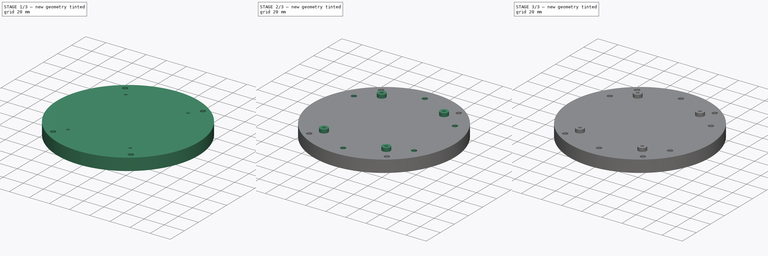
[diagram: build sequence overview — one tinted view per stage of 3, left to right]
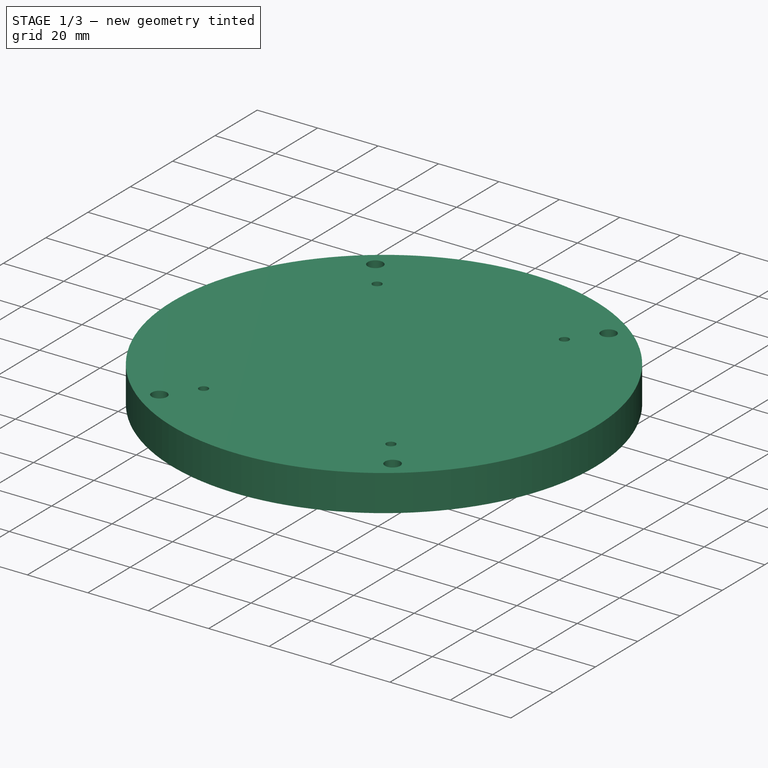
[diagram: stage 1 of 3 — iso view after this stage's code; geometry added in this stage tinted green]
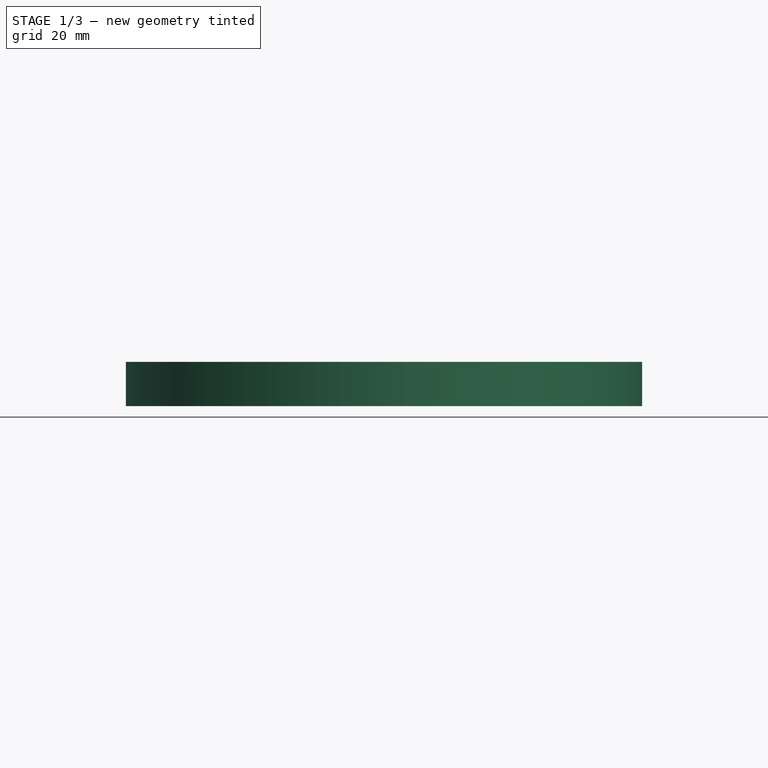
[diagram: stage 1 of 3 — front view after this stage's code; geometry added in this stage tinted green]
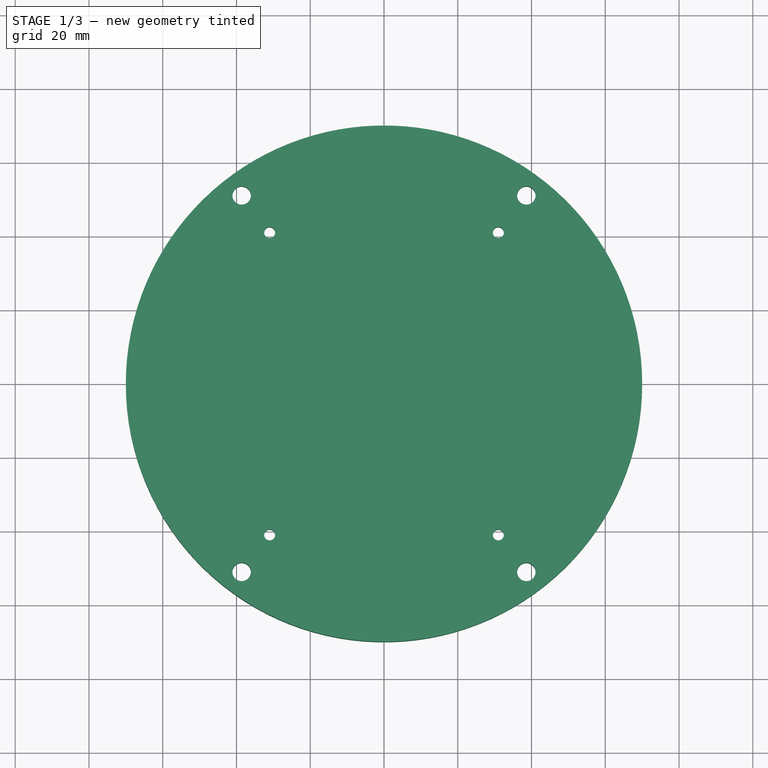
[diagram: stage 1 of 3 — top view after this stage's code; geometry added in this stage tinted green]
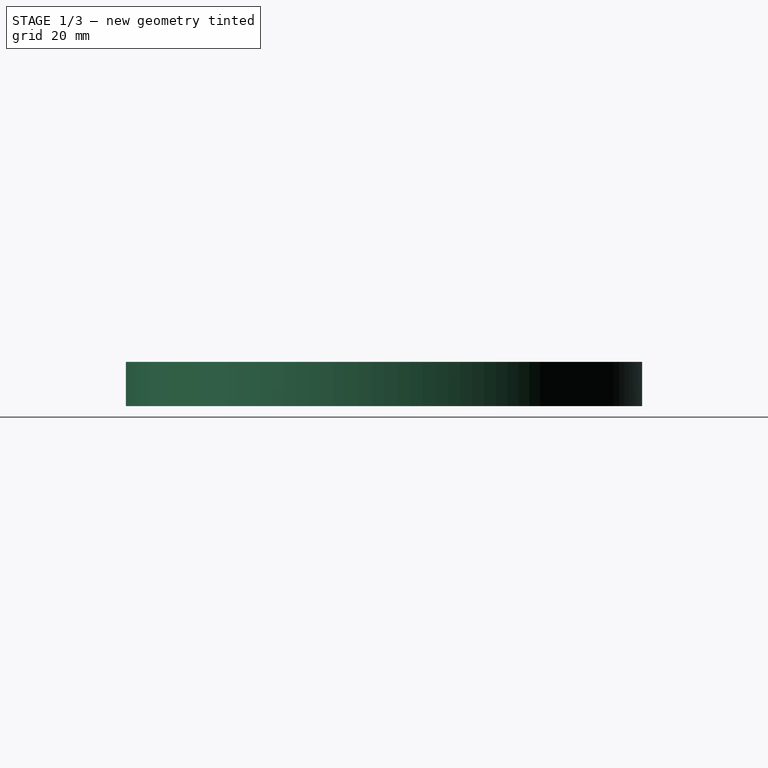
[diagram: stage 1 of 3 — right view after this stage's code; geometry added in this stage tinted green]
FCSTD DOCUMENT  (FreeCAD 0.20R29410 (Git))
Label: #1_BaseFloor
License: All rights reserved
LicenseURL: http://en.wikipedia.org/wiki/All_rights_reserved
objects: Sketcher::SketchObject×5, PartDesign::Pocket×3, PartDesign::Pad×2, PartDesign::PolarPattern×1, PartDesign::Body×1
note: 17 computed .brp shape members not serialized (recipe doc carries the construction recipe); baked Part::Feature solids carry a one-line shape summary decoded from their .brp

FEATURE [Sketcher::SketchObject] Sketch
  FullyConstrained = true
  MapMode = 5
  Support = -> [XY_Plane]
  sketch-geometry (6):
    g0: Circle CenterX=0 CenterY=0 CenterZ=0 NormalX=0 NormalY=0 NormalZ=1 AngleXU=0 Radius=70
    g1: GeomPoint X=0 Y=0 Z=0
    g2: Circle CenterX=38.6 CenterY=51.05 CenterZ=0 NormalX=0 NormalY=0 NormalZ=1 AngleXU=0 Radius=2.5
    g3: Circle CenterX=-38.6 CenterY=51.05 CenterZ=0 NormalX=0 NormalY=0 NormalZ=1 AngleXU=0 Radius=2.5
    g4: Circle CenterX=38.6 CenterY=-51.05 CenterZ=0 NormalX=0 NormalY=0 NormalZ=1 AngleXU=0 Radius=2.5
    g5: Circle CenterX=-38.6 CenterY=-51.05 CenterZ=0 NormalX=0 NormalY=0 NormalZ=1 AngleXU=0 Radius=2.5
  constraints (12):
    c: Coincident(g0,g-1)
    c: Diameter(g0) = 140
    c: Coincident(g1,g0)
    c: Diameter(g5) = 5
    c: Diameter(g3) = 5
    c: Diameter(g2) = 5
    c: Diameter(g4) = 5
    c: Distance(g3,g-2) = 38.6
    c: Distance(g3,g-1) = 51.05
    c: Symmetric(g3,g5,g-1)
    c: Symmetric(g4,g5,g-2)
    c: Symmetric(g2,g3,g-2)
FEATURE [PartDesign::Pad] Pad
  Direction = (0,0,1)
  Length = 12
  Length2 = 10
  Profile = -> Sketch
  ReferenceAxis = -> Sketch [N_Axis]
  Type = 0
FEATURE [Sketcher::SketchObject] Sketch001
  FullyConstrained = true
  MapMode = 5
  Placement = pos=(0,0,12) rot=(0,0,1;0rad)
  Support = -> [Pad]
  sketch-geometry (4):
    g0: Circle CenterX=-31 CenterY=41 CenterZ=0 NormalX=0 NormalY=0 NormalZ=1 AngleXU=0 Radius=1.5
    g1: Circle CenterX=31 CenterY=41 CenterZ=0 NormalX=0 NormalY=0 NormalZ=1 AngleXU=0 Radius=1.5
    g2: Circle CenterX=31 CenterY=-41 CenterZ=0 NormalX=0 NormalY=0 NormalZ=1 AngleXU=0 Radius=1.5
    g3: Circle CenterX=-31 CenterY=-41 CenterZ=0 NormalX=0 NormalY=0 NormalZ=1 AngleXU=0 Radius=1.5
  constraints (9):
    c: Distance(g1,g-2) = 31
    c: Distance(g1,g-1) = 41
    c: Symmetric(g1,g2,g-1)
    c: Symmetric(g3,g2,g-2)
    c: Symmetric(g3,g0,g-1)
    c: Diameter(g1) = 3
    c: Diameter(g2) = 3
    c: Diameter(g3) = 3
    c: Diameter(g0) = 3
FEATURE [PartDesign::Pocket] Pocket
  BaseFeature = -> Pad
  Direction = (0,0,-1)
  Length = 15
  Length2 = 5
  Profile = -> Sketch001
  ReferenceAxis = -> Sketch001 [N_Axis]
  Type = 0
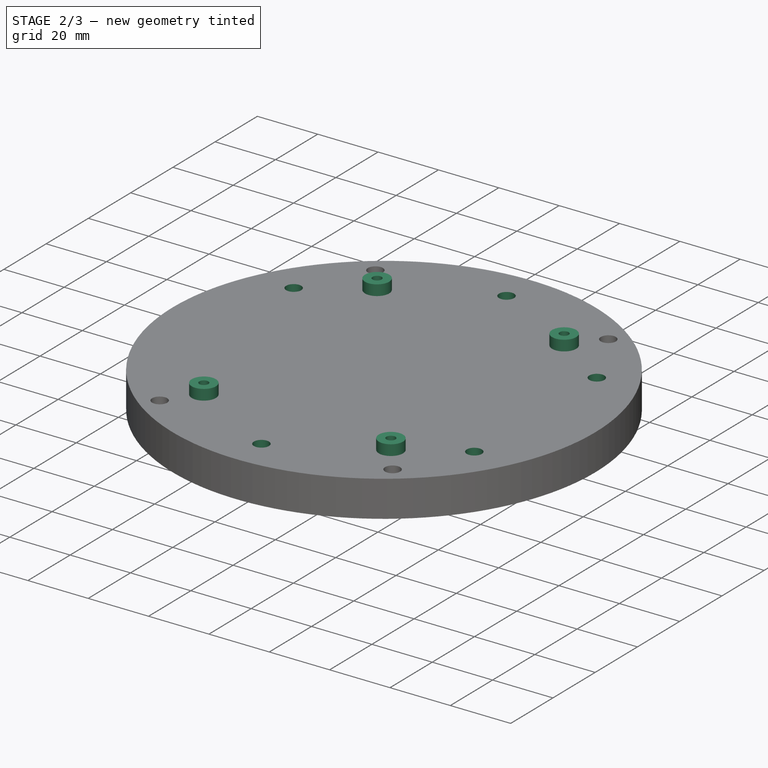
[diagram: stage 2 of 3 — iso view after this stage's code; geometry added in this stage tinted green]
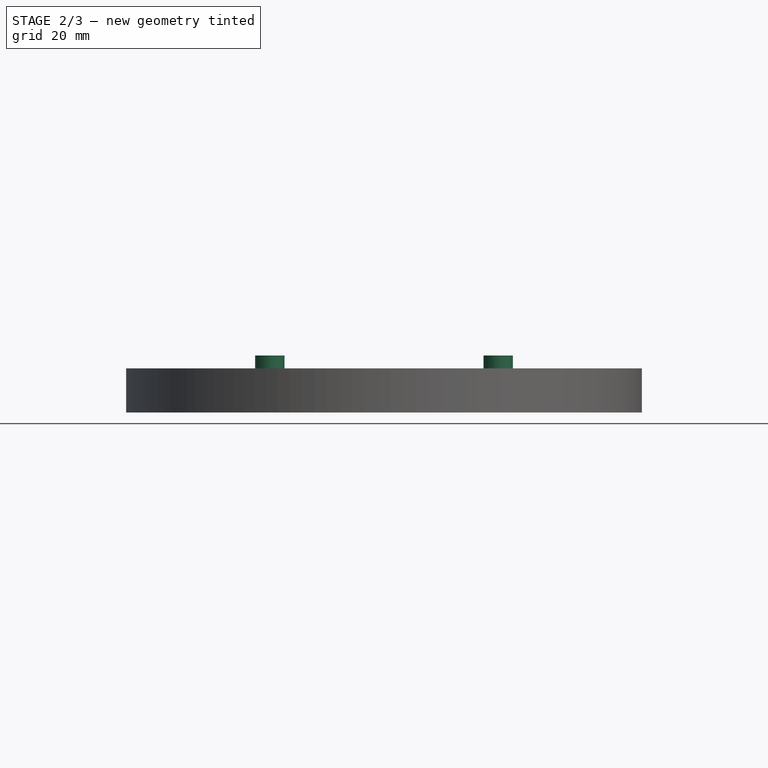
[diagram: stage 2 of 3 — front view after this stage's code; geometry added in this stage tinted green]
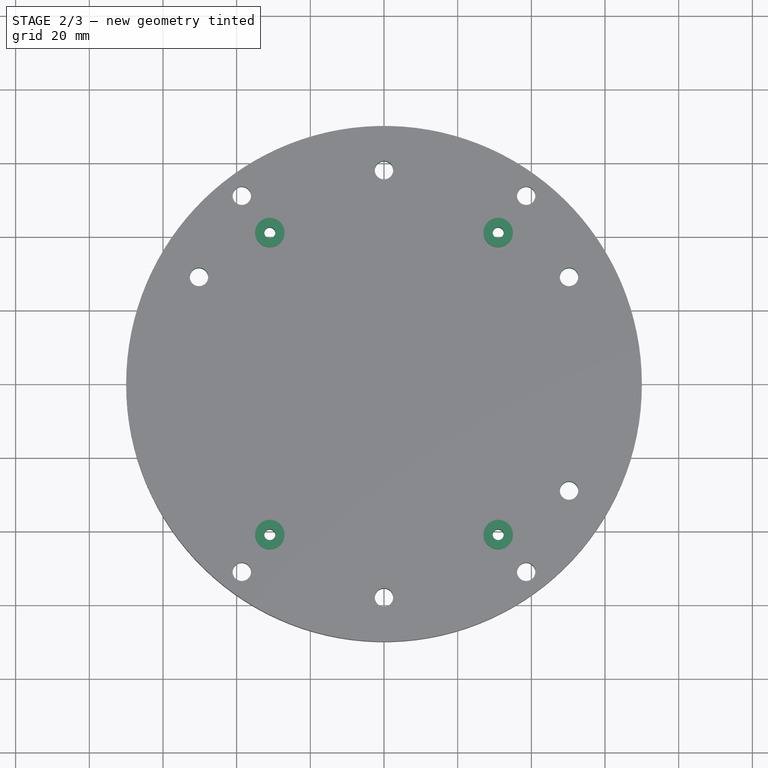
[diagram: stage 2 of 3 — top view after this stage's code; geometry added in this stage tinted green]
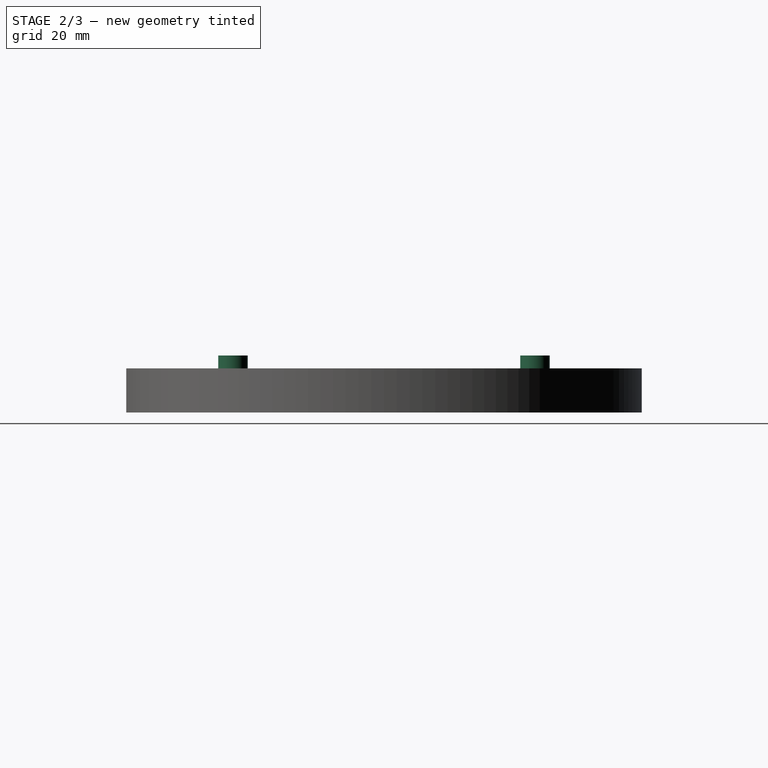
[diagram: stage 2 of 3 — right view after this stage's code; geometry added in this stage tinted green]
FEATURE [Sketcher::SketchObject] Sketch002
  ExternalGeometry = -> [Pocket]
  FullyConstrained = true
  MapMode = 5
  Placement = pos=(0,0,12) rot=(0,0,1;0rad)
  Support = -> [Pocket]
  sketch-geometry (8):
    g0: Circle CenterX=-31 CenterY=-41 CenterZ=0 NormalX=0 NormalY=0 NormalZ=1 AngleXU=0 Radius=4
    g1: Circle CenterX=31 CenterY=-41 CenterZ=0 NormalX=0 NormalY=0 NormalZ=1 AngleXU=0 Radius=4
    g2: Circle CenterX=31 CenterY=41 CenterZ=0 NormalX=0 NormalY=0 NormalZ=1 AngleXU=0 Radius=4
    g3: Circle CenterX=-31 CenterY=41 CenterZ=0 NormalX=0 NormalY=0 NormalZ=1 AngleXU=0 Radius=4
    g4: Circle CenterX=-31 CenterY=41 CenterZ=0 NormalX=0 NormalY=0 NormalZ=1 AngleXU=0 Radius=1.5
    g5: Circle CenterX=31 CenterY=41 CenterZ=0 NormalX=0 NormalY=0 NormalZ=1 AngleXU=0 Radius=1.5
    g6: Circle CenterX=31 CenterY=-41 CenterZ=0 NormalX=0 NormalY=0 NormalZ=1 AngleXU=0 Radius=1.5
    g7: Circle CenterX=-31 CenterY=-41 CenterZ=0 NormalX=0 NormalY=0 NormalZ=1 AngleXU=0 Radius=1.5
  constraints (16):
    c: Coincident(g0,g-5)
    c: Coincident(g1,g-6)
    c: Coincident(g2,g-4)
    c: Coincident(g3,g-3)
    c: Diameter(g2) = 8
    c: Diameter(g3) = 8
    c: Diameter(g0) = 8
    c: Diameter(g1) = 8
    c: Coincident(g4,g3)
    c: Diameter(g4) = 3
    c: Coincident(g5,g2)
    c: Diameter(g5) = 3
    c: Coincident(g6,g1)
    c: Diameter(g6) = 3
    c: Coincident(g7,g0)
    c: Diameter(g7) = 3
FEATURE [PartDesign::Pad] Pad001
  BaseFeature = -> Pocket
  Direction = (0,0,1)
  Length = 3.5
  Length2 = 10
  Profile = -> Sketch002
  ReferenceAxis = -> Sketch002 [N_Axis]
  Type = 0
FEATURE [Sketcher::SketchObject] Sketch003
  FullyConstrained = true
  MapMode = 5
  Placement = pos=(0,0,12) rot=(0,0,1;0rad)
  Support = -> [Pad001]
  sketch-geometry (5):
    g0: Circle CenterX=0 CenterY=58 CenterZ=0 NormalX=0 NormalY=0 NormalZ=1 AngleXU=0 Radius=2.5
    g1: Circle CenterX=50.2295 CenterY=29 CenterZ=0 NormalX=0 NormalY=0 NormalZ=1 AngleXU=0 Radius=2.5
    g2: Circle CenterX=50.2295 CenterY=-29 CenterZ=0 NormalX=0 NormalY=0 NormalZ=1 AngleXU=0 Radius=2.5
    g3: Circle CenterX=-7.8e-15 CenterY=-58 CenterZ=0 NormalX=0 NormalY=0 NormalZ=1 AngleXU=0 Radius=2.5
    g4: Circle CenterX=-50.2295 CenterY=29 CenterZ=0 NormalX=0 NormalY=0 NormalZ=1 AngleXU=0 Radius=2.5
  constraints (15):
    c: Distance(g-1,g0) = 58
    c: Diameter(g0) = 5
    c: PointOnObject(g0,g-2)
    c: Diameter(g1) = 5
    c: Diameter(g2) = 5
    c: Diameter(g3) = 5
    c: Distance(g-1,g1) = 58
    c: Distance(g2,g-1) = 58
    c: Distance(g-1,g3) = 58
    c: Distance(g1,g0) = 58
    c: Distance(g1,g2) = 58
    c: Distance(g3,g2) = 58
    c: Distance(g4,g-1) = 58
    c: Distance(g4,g0) = 58
    c: Diameter(g4) = 5
FEATURE [PartDesign::Pocket] Pocket001
  BaseFeature = -> Pad001
  Direction = (0,0,-1)
  Length = 15
  Length2 = 5
  Profile = -> Sketch003
  ReferenceAxis = -> Sketch003 [N_Axis]
  Type = 0
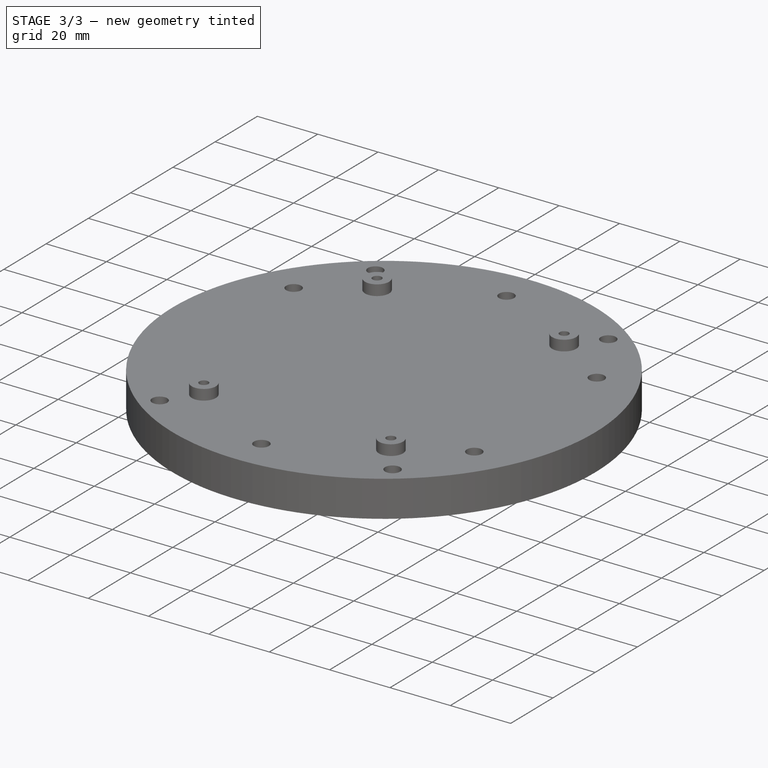
[diagram: stage 3 of 3 — iso view after this stage's code; geometry added in this stage tinted green]
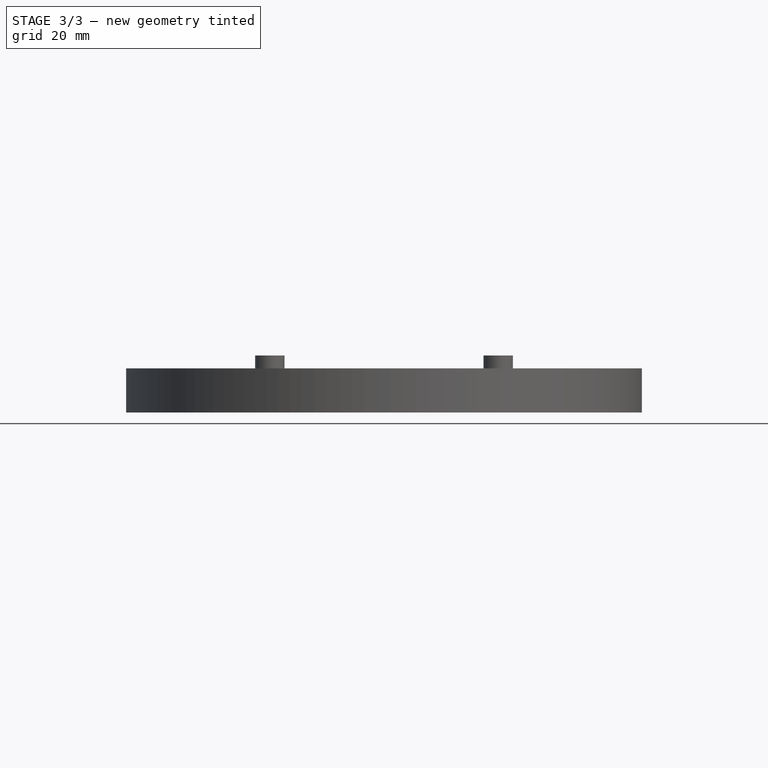
[diagram: stage 3 of 3 — front view after this stage's code; geometry added in this stage tinted green]
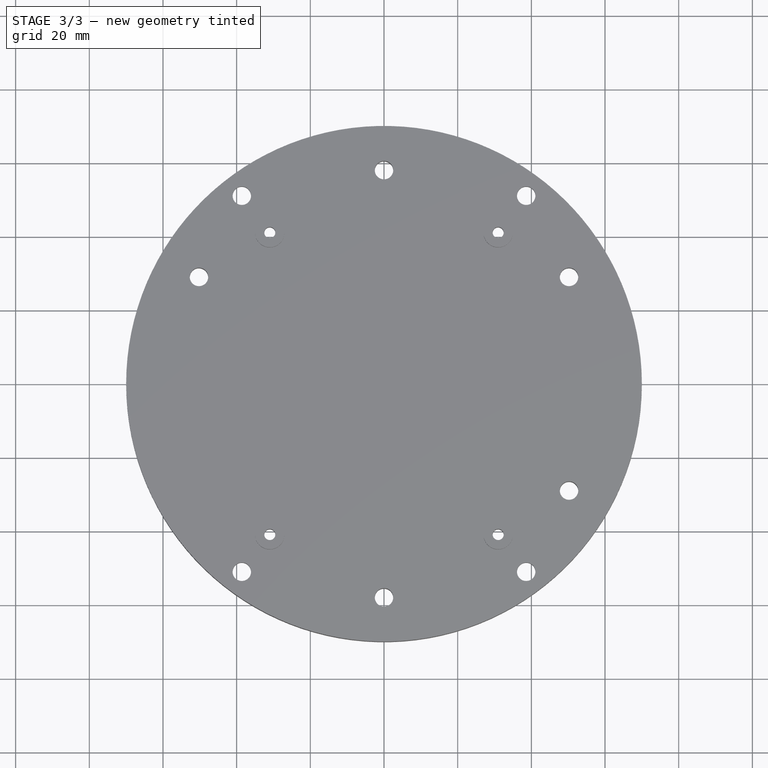
[diagram: stage 3 of 3 — top view after this stage's code; geometry added in this stage tinted green]
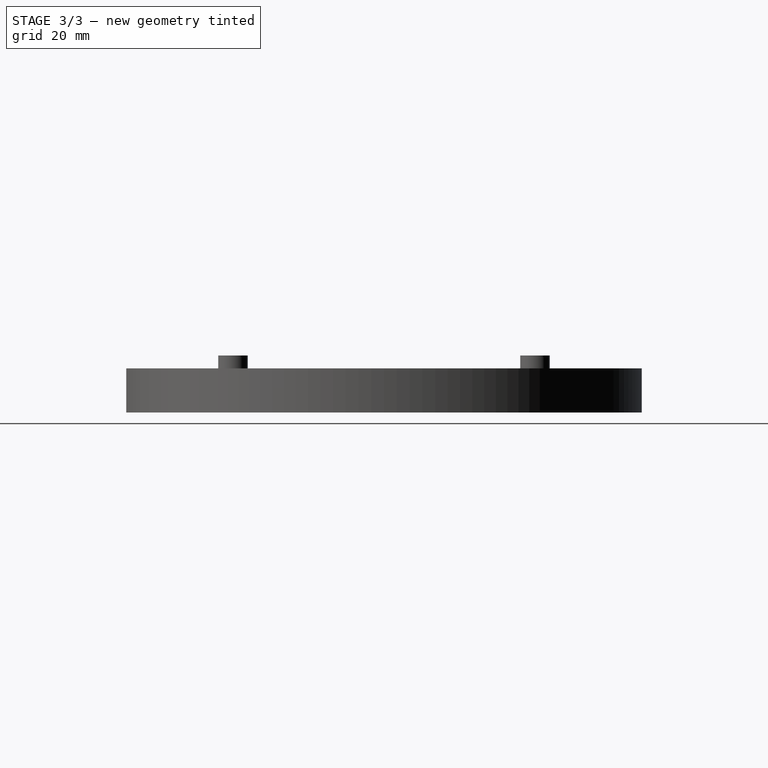
[diagram: stage 3 of 3 — right view after this stage's code; geometry added in this stage tinted green]
FEATURE [Sketcher::SketchObject] Sketch004
  ExternalGeometry = -> [Pocket001]
  FullyConstrained = true
  MapMode = 5
  Placement = pos=(0,0,0) rot=(1,0,0;3.14159rad)
  Support = -> [Pocket001]
  sketch-geometry (32):
    g0: LineSegment StartX=-35.0081 StartY=53.7663 StartZ=0 EndX=-39.1564 EndY=55.5188 EndZ=0
    g1: LineSegment StartX=-39.1564 StartY=55.5188 StartZ=0 EndX=-42.7483 EndY=52.8026 EndZ=0
    g2: LineSegment StartX=-42.7483 StartY=52.8026 StartZ=0 EndX=-42.1919 EndY=48.3337 EndZ=0
    g3: LineSegment StartX=-42.1919 StartY=48.3337 StartZ=0 EndX=-38.0436 EndY=46.5812 EndZ=0
    g4: LineSegment StartX=-38.0436 StartY=46.5812 StartZ=0 EndX=-34.4517 EndY=49.2974 EndZ=0
    g5: LineSegment StartX=-34.4517 StartY=49.2974 StartZ=0 EndX=-35.0081 EndY=53.7663 EndZ=0
    g6: Circle CenterX=-38.6 CenterY=51.05 CenterZ=0 NormalX=0 NormalY=0 NormalZ=1 AngleXU=0 Radius=4.50333
    g7: LineSegment StartX=-28.5133 StartY=42.8805 StartZ=0 EndX=-31.3852 EndY=44.0938 EndZ=0
    g8: LineSegment StartX=-31.3852 StartY=44.0938 StartZ=0 EndX=-33.8719 EndY=42.2133 EndZ=0
    g9: LineSegment StartX=-33.8719 StartY=42.2133 StartZ=0 EndX=-33.4867 EndY=39.1195 EndZ=0
    g10: LineSegment StartX=-33.4867 StartY=39.1195 StartZ=0 EndX=-30.6148 EndY=37.9062 EndZ=0
    g11: LineSegment StartX=-30.6148 StartY=37.9062 StartZ=0 EndX=-28.1281 EndY=39.7867 EndZ=0
    g12: LineSegment StartX=-28.1281 StartY=39.7867 StartZ=0 EndX=-28.5133 EndY=42.8805 EndZ=0
    g13: Circle CenterX=-31 CenterY=41 CenterZ=0 NormalX=0 NormalY=0 NormalZ=1 AngleXU=0 Radius=3.11769
    g14: LineSegment StartX=-34.4517 StartY=49.2974 StartZ=0 EndX=-33.8719 EndY=42.2133 EndZ=0
    g15: LineSegment StartX=-31.3852 StartY=44.0938 StartZ=0 EndX=-38.0436 EndY=46.5812 EndZ=0
    g16: LineSegment StartX=-35.0081 StartY=-53.7663 StartZ=0 EndX=-34.4517 EndY=-49.2974 EndZ=0
    g17: LineSegment StartX=-34.4517 StartY=-49.2974 StartZ=0 EndX=-38.0436 EndY=-46.5812 EndZ=0
    g18: LineSegment StartX=-38.0436 StartY=-46.5812 StartZ=0 EndX=-42.1919 EndY=-48.3337 EndZ=0
    g19: LineSegment StartX=-42.1919 StartY=-48.3337 StartZ=0 EndX=-42.7483 EndY=-52.8026 EndZ=0
    g20: LineSegment StartX=-42.7483 StartY=-52.8026 StartZ=0 EndX=-39.1564 EndY=-55.5188 EndZ=0
    g21: LineSegment StartX=-39.1564 StartY=-55.5188 StartZ=0 EndX=-35.0081 EndY=-53.7663 EndZ=0
    g22: Circle CenterX=-38.6 CenterY=-51.05 CenterZ=0 NormalX=0 NormalY=0 NormalZ=1 AngleXU=0 Radius=4.50333
    g23: LineSegment StartX=-28.5133 StartY=-42.8805 StartZ=0 EndX=-28.1281 EndY=-39.7867 EndZ=0
    g24: LineSegment StartX=-28.1281 StartY=-39.7867 StartZ=0 EndX=-30.6148 EndY=-37.9062 EndZ=0
    g25: LineSegment StartX=-30.6148 StartY=-37.9062 StartZ=0 EndX=-33.4867 EndY=-39.1195 EndZ=0
    g26: LineSegment StartX=-33.4867 StartY=-39.1195 StartZ=0 EndX=-33.8719 EndY=-42.2133 EndZ=0
    g27: LineSegment StartX=-33.8719 StartY=-42.2133 StartZ=0 EndX=-31.3852 EndY=-44.0938 EndZ=0
    g28: LineSegment StartX=-31.3852 StartY=-44.0938 StartZ=0 EndX=-28.5133 EndY=-42.8805 EndZ=0
    g29: Circle CenterX=-31 CenterY=-41 CenterZ=0 NormalX=0 NormalY=0 NormalZ=1 AngleXU=0 Radius=3.11769
    g30: LineSegment StartX=-33.8719 StartY=-42.2133 StartZ=0 EndX=-34.4517 EndY=-49.2974 EndZ=0
    g31: LineSegment StartX=-31.3852 StartY=-44.0938 StartZ=0 EndX=-38.0436 EndY=-46.5812 EndZ=0
  constraints (72):
    c: Coincident(g0,g1)
    c: Coincident(g1,g2)
    c: Coincident(g2,g3)
    c: Coincident(g3,g4)
    c: Coincident(g4,g5)
    c: Coincident(g5,g0)
    c: Equal(g0, g1-g5) x5
    c: PointOnObject(g0,g6)
    c: PointOnObject(g1,g6)
    c: PointOnObject(g2,g6)
    c: PointOnObject(g3,g6)
    c: PointOnObject(g4,g6)
    c: PointOnObject(g5,g6)
    c: Coincident(g6,g-4)
    c: Coincident(g7,g8)
    c: Coincident(g8,g9)
    c: Coincident(g9,g10)
    c: Coincident(g10,g11)
    c: Coincident(g11,g12)
    c: Coincident(g12,g7)
    c: Equal(g7, g8-g12) x5
    c: PointOnObject(g7,g13)
    c: PointOnObject(g8,g13)
    c: PointOnObject(g9,g13)
    c: PointOnObject(g10,g13)
    c: PointOnObject(g11,g13)
    c: PointOnObject(g12,g13)
    c: Coincident(g13,g-3)
    c: Distance(g10,g7) = 5.4
    c: Distance(g3,g0) = 7.8
    c: Parallel(g8,g4)
    c: Coincident(g14,g4)
    c: Coincident(g14,g8)
    c: Coincident(g15,g7)
    c: Coincident(g15,g3)
    c: Equal(g15,g14)
    c: Coincident(g16,g17)
    c: Coincident(g17,g18)
    c: Coincident(g18,g19)
    c: Coincident(g19,g20)
    c: Coincident(g20,g21)
    c: Coincident(g21,g16)
    c: Equal(g16, g17-g21) x5
    c: PointOnObject(g16,g22)
    c: PointOnObject(g17,g22)
    c: PointOnObject(g18,g22)
    c: PointOnObject(g19,g22)
    c: PointOnObject(g20,g22)
    c: PointOnObject(g21,g22)
    c: Coincident(g22,g-14)
    c: Coincident(g23,g24)
    c: Coincident(g24,g25)
    c: Coincident(g25,g26)
    c: Coincident(g26,g27)
    c: Coincident(g27,g28)
    c: Coincident(g28,g23)
    c: Equal(g23, g24-g28) x5
    c: PointOnObject(g23,g29)
    c: PointOnObject(g24,g29)
    c: PointOnObject(g25,g29)
    c: PointOnObject(g26,g29)
    c: PointOnObject(g27,g29)
    c: PointOnObject(g28,g29)
    c: Coincident(g29,g-15)
    c: Distance(g23,g24) = 5.4
    c: Distance(g16,g17) = 7.8
    c: Coincident(g30,g26)
    c: Coincident(g30,g16)
    c: Coincident(g31,g27)
    c: Coincident(g31,g17)
    c: Equal(g31,g30)
    c: Parallel(g27,g17)
FEATURE [PartDesign::Pocket] Pocket002
  BaseFeature = -> Pocket001
  Direction = (0,0,1)
  Length = 5
  Length2 = 5
  Profile = -> Sketch004
  ReferenceAxis = -> Sketch004 [N_Axis]
  Type = 0
FEATURE [PartDesign::PolarPattern] PolarPattern
  Angle = 360
  Axis = -> Sketch004 [N_Axis]
  BaseFeature = -> Pocket002
  Occurrences = 2
  Originals = -> [Pocket002]
FEATURE [PartDesign::Body] Body
  Group = -> [Sketch,Pad,Sketch001,Pocket,Sketch002,Pad001,Sketch003,Pocket001,Sketch004,Pocket002,PolarPattern]
  Origin = -> Origin
  Tip = -> PolarPattern
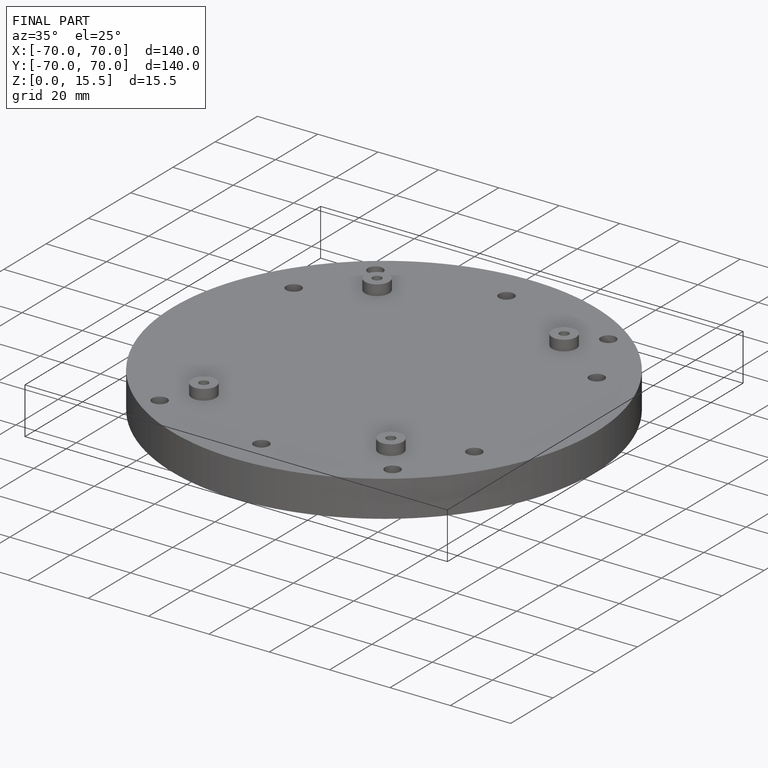
[diagram: finished part — iso view with bounding-box wireframe]
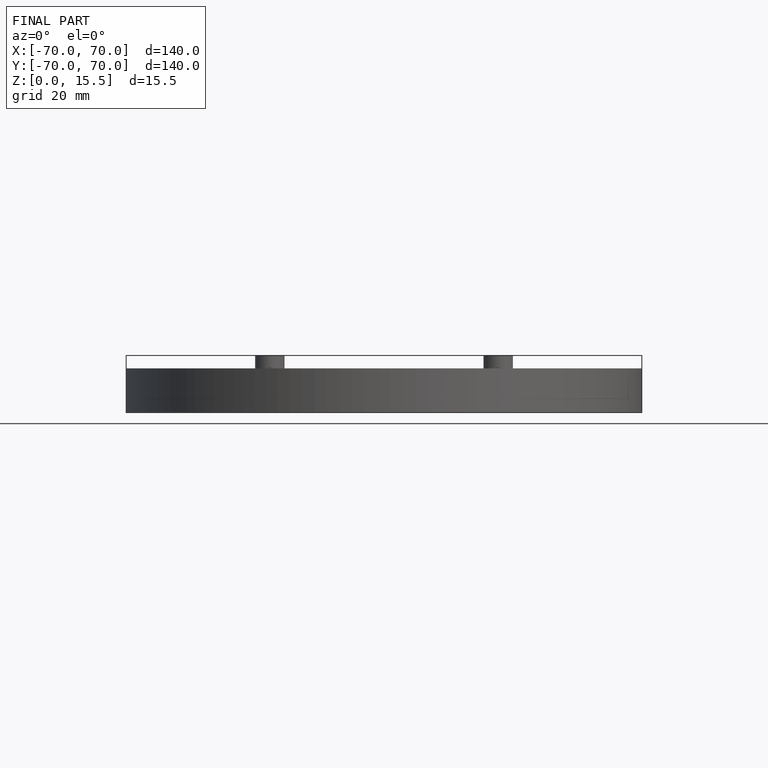
[diagram: finished part — front view with bounding-box wireframe]
